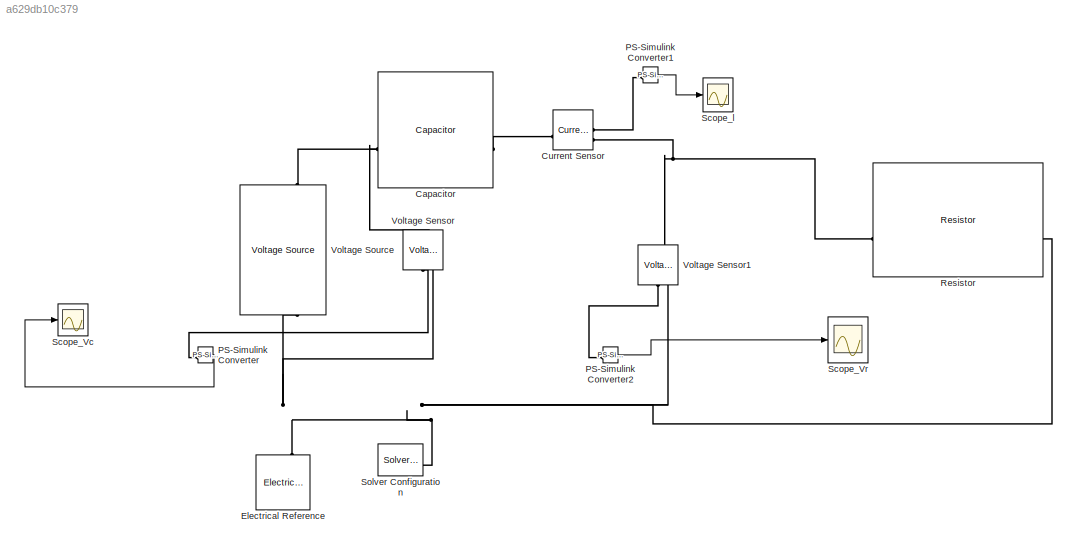
MODEL slx_a629db10c379
KIND model
CONFIG AbsTol = auto
CONFIG EnableMultiTasking = off
CONFIG FixedStep = auto
CONFIG MaxStep = auto
CONFIG MinStep = auto
CONFIG RelTol = 1e-3
CONFIG SampleTimeConstraint = Unconstrained
CONFIG SolverName = VariableStepAuto
CONFIG StartTime = 0.0
CONFIG StopTime = 10.0
BLOCK [Reference] Capacitor  REF=fl_lib/Electrical/Electrical Elements/Capacitor
  SourceBlock = fl_lib/Electrical/Electrical Elements/Capacitor
  SourceType = Capacitor
BLOCK [Reference] Current Sensor  REF=fl_lib/Electrical/Electrical Sensors/Current Sensor
  SourceBlock = fl_lib/Electrical/Electrical Sensors/Current Sensor
  SourceType = Current Sensor
BLOCK [Reference] Electrical Reference  REF=fl_lib/Electrical/Electrical Elements/Electrical Reference
  NameLocation = right
  SourceBlock = fl_lib/Electrical/Electrical Elements/Electrical Reference
  SourceType = Electrical Reference
BLOCK [Reference] PS-Simulink Converter  REF=nesl_utility/PS-Simulink
Converter
  SourceBlock = nesl_utility/PS-Simulink\nConverter
  SourceType = PS-Simulink\nConverter
BLOCK [Reference] PS-Simulink Converter1  REF=nesl_utility/PS-Simulink
Converter
  SourceBlock = nesl_utility/PS-Simulink\nConverter
  SourceType = PS-Simulink\nConverter
BLOCK [Reference] PS-Simulink Converter2  REF=nesl_utility/PS-Simulink
Converter
  SourceBlock = nesl_utility/PS-Simulink\nConverter
  SourceType = PS-Simulink\nConverter
BLOCK [Reference] Resistor  REF=fl_lib/Electrical/Electrical Elements/Resistor
  SourceBlock = fl_lib/Electrical/Electrical Elements/Resistor
  SourceType = Resistor
BLOCK [Scope] Scope_Vc
  ActiveDisplayYMaximum = 11
  ActiveDisplayYMinimum = 9
  ContainerLayout = {"WindowBounds":[-8,-8,1382,736]}
  Floating = off
  GraphicalSettings = {"Style":{"BackgroundColor":[0.12941176470588237,0.12941176470588237,0.12941176470588237],"AxesColor":[0.07058823529411765,0.07058823529411765,0.07058823529411765],"LabelsColor":[0.8509803921568627,0.8509803921568627,0.8509803921568627],"PreserveColors":false,"Visible":[true],"LineStyle":["-."],"LineWidth":[3],"BarWidth":[0.9],"LineColor":[[0.5215686274509804,0.08627450980392157,0.8196078431372549...<+2376ch>
  MultipleDisplayCache = [{"MaxYLimMag":11,"MaxYLimReal":11,"MinYLimMag":9,"MinYLimReal":9,"PlotAsMagnitudePhase":false,"ShowGrid":true,"ShowLegend":false,"Title":"Voltaje de carga en función del Tiempo del Capacitor (Vc)","YLabel":"Voltaje Vc (V)"}]
  NumInputPorts = 1
  ScopeFrameLocation = container
  ShowTimeAxisLabel = on
  Title = Voltaje de carga en función del Tiempo del Capacitor (Vc)
  Visible = on
  WasSavedAsWebScope = on
  WindowPosition = [-8.000000,40.000000,1370.000000,736.000000,]
  YLabel = Voltaje Vc (V)
BLOCK [Scope] Scope_Vr
  ActiveDisplayYMaximum = 11.69240067547026
  ActiveDisplayYMinimum = -1.5652014822754534
  DataLoggingVariableName = ScopeData1
  Floating = off
  GraphicalSettings = {"Style":{"BackgroundColor":[0.12941176470588237,0.12941176470588237,0.12941176470588237],"AxesColor":[0.07058823529411765,0.07058823529411765,0.07058823529411765],"LabelsColor":[0.8509803921568627,0.8509803921568627,0.8509803921568627],"PreserveColors":false,"Visible":[true],"LineStyle":["-"],"LineWidth":[1.5],"BarWidth":[0.9],"LineColor":["auto"],"LineFaceAlpha":[1],"LineEdgeAlpha":[1],"Marker":...<+2025ch>
  MultipleDisplayCache = [{"MaxYLimMag":11.24994254686206,"MaxYLimReal":11.69240067547026,"MinYLimMag":0,"MinYLimReal":-1.5652014822754534,"PlotAsMagnitudePhase":false,"ShowGrid":true,"ShowLegend":false,"Title":"%<SignalLabel>","YLabel":""}]
  NumInputPorts = 1
  ScopeFrameLocation = window
  WasSavedAsWebScope = on
  WindowPosition = [91.000000,136.000000,560.000000,420.000000,]
BLOCK [Scope] Scope_l
  ActiveDisplayYMaximum = 0.70312140917887878
  ActiveDisplayYMinimum = -0.078093073234884292
  DataLoggingVariableName = ScopeData2
  Floating = off
  GraphicalSettings = {"Style":{"BackgroundColor":[0.12941176470588237,0.12941176470588237,0.12941176470588237],"AxesColor":[0.07058823529411765,0.07058823529411765,0.07058823529411765],"LabelsColor":[0.8509803921568627,0.8509803921568627,0.8509803921568627],"PreserveColors":false,"Visible":[true],"LineStyle":[":"],"LineWidth":[6],"BarWidth":[0.9],"LineColor":[[0,1,0]],"LineFaceAlpha":[1],"LineEdgeAlpha":[1],"Marker":[...<+2110ch>
  MultipleDisplayCache = [{"MaxYLimMag":0.70312140917887878,"MaxYLimReal":0.70312140917887878,"MinYLimMag":0,"MinYLimReal":-0.078093073234884292,"PlotAsMagnitudePhase":false,"ShowGrid":true,"ShowLegend":false,"Title":"Corriente de carga en función del Tiempo del Capacitor (I)","YLabel":"Corriente (A)"}]
  NumInputPorts = 1
  ScopeFrameLocation = window
  ShowTimeAxisLabel = on
  Title = Corriente de carga en función del Tiempo del Capacitor (I)
  WasSavedAsWebScope = on
  WindowPosition = [0.000000,36.000000,1366.000000,697.000000,]
  YLabel = Corriente (A)
BLOCK [Reference] Solver Configuration  REF=nesl_utility/Solver
Configuration
  SourceBlock = nesl_utility/Solver\nConfiguration
  SourceType = Solver\nConfiguration
BLOCK [Reference] Voltage Sensor  REF=fl_lib/Electrical/Electrical Sensors/Voltage Sensor
  NameLocation = right
  SourceBlock = fl_lib/Electrical/Electrical Sensors/Voltage Sensor
  SourceType = Voltage Sensor
BLOCK [Reference] Voltage Sensor1  REF=fl_lib/Electrical/Electrical Sensors/Voltage Sensor
  NameLocation = right
  SourceBlock = fl_lib/Electrical/Electrical Sensors/Voltage Sensor
  SourceType = Voltage Sensor
BLOCK [Reference] Voltage Source  REF=ee_lib/Sources/Voltage Source
  NameLocation = right
  SourceBlock = ee_lib/Sources/Voltage Source
  SourceType = Voltage Source
LINE PS-Simulink Converter1:1 -> Scope_l:1
LINE PS-Simulink Converter2:1 -> Scope_Vr:1
LINE PS-Simulink Converter:1 -> Scope_Vc:1
PNET net1: Capacitor:LConn1 -- Voltage Sensor:LConn1 -- Voltage Source:LConn1
PLINE Capacitor:RConn1 -- Current Sensor:LConn1
PLINE Current Sensor:RConn1 -- PS-Simulink Converter1:LConn1
PNET net2: Current Sensor:RConn2 -- Resistor:LConn1 -- Voltage Sensor1:LConn1
PNET net3: Electrical Reference:LConn1 -- Resistor:RConn1 -- Solver Configuration:RConn1 -- Voltage Sensor1:RConn2 -- Voltage Sensor:RConn2 -- Voltage Source:RConn1
PLINE PS-Simulink Converter2:LConn1 -- Voltage Sensor1:RConn1
PLINE PS-Simulink Converter:LConn1 -- Voltage Sensor:RConn1
note: PNET lines group multi-terminal physical nets as a canonical sorted terminal list (undirected conserving connections); 2-terminal nets keep the pairwise PLINE form
